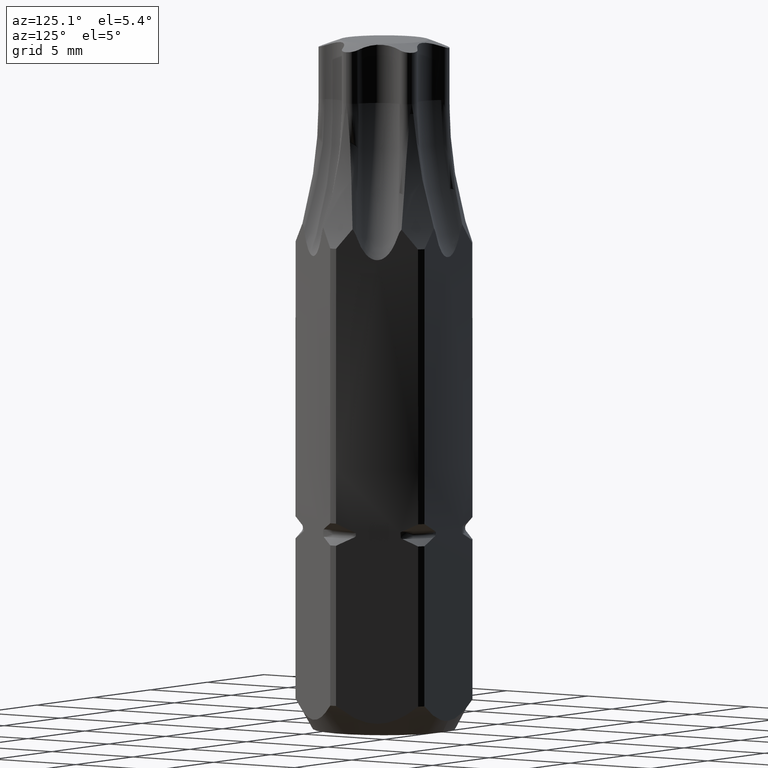
[diagram: clean part render]
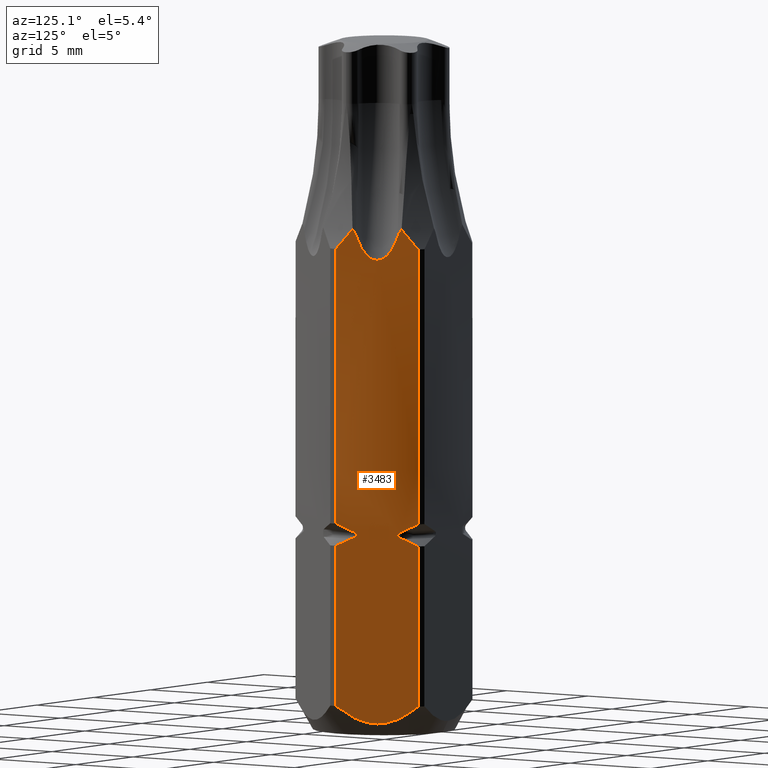
[diagram: same view with one face highlighted and labeled with its STEP entity id]
A machine part, auxiliary view. The second image highlights one B-rep face of the part: STEP entity #3483.
In plain terms, the highlighted planar face has unit normal (-0.866, -0.5, 0).
Its self-contained STEP definition (entity closure, byte-faithful):
#148=DIRECTION('',(0.E0,0.E0,-1.E0));
#149=VECTOR('',#148,8.137942564534E0);
#150=CARTESIAN_POINT('',(2.391056939270E0,3.788567897395E0,9.637942564534E0));
#151=LINE('',#150,#149);
#177=DIRECTION('',(0.E0,0.E0,-1.E0));
#178=VECTOR('',#177,8.137942564534E0);
#179=CARTESIAN_POINT('',(4.476524512741E0,1.764321026052E-1,9.637942564534E0));
#180=LINE('',#179,#178);
#280=DIRECTION('',(0.E0,0.E0,-1.E0));
#281=VECTOR('',#280,2.737942564534E0);
#282=CARTESIAN_POINT('',(2.391056939270E0,3.788567897395E0,1.35E1));
#283=LINE('',#282,#281);
#311=DIRECTION('',(0.E0,0.E0,-1.E0));
#312=VECTOR('',#311,2.737942564534E0);
#313=CARTESIAN_POINT('',(4.476524512741E0,1.764321026052E-1,1.35E1));
#314=LINE('',#313,#312);
#384=CARTESIAN_POINT('',(2.391056939270E0,3.788567897395E0,1.35E1));
#385=CARTESIAN_POINT('',(2.391679546177E0,3.787489510599E0,1.35E1));
#386=CARTESIAN_POINT('',(2.394167015446E0,3.786259436940E0,1.35E1));
#387=CARTESIAN_POINT('',(2.394789622352E0,3.785181050144E0,1.35E1));
#392=CARTESIAN_POINT('',(4.475457758524E0,1.813581246046E-1,1.35E1));
#393=CARTESIAN_POINT('',(4.476080365431E0,1.802797378087E-1,1.35E1));
#394=CARTESIAN_POINT('',(4.475901905834E0,1.775104894012E-1,1.35E1));
#395=CARTESIAN_POINT('',(4.476524512741E0,1.764321026052E-1,1.35E1));
#400=DIRECTION('',(1.348640941135E-4,-1.421864597069E-4,-9.999999807973E-1));
#401=VECTOR('',#400,1.122604300291E1);
#402=CARTESIAN_POINT('',(4.473943768404E0,1.829543159157E-1,2.472604278734E1));
#403=LINE('',#402,#401);
#407=DIRECTION('',(-5.570503912357E-5,1.878889614141E-4,-9.999999807973E-1));
#408=VECTOR('',#407,1.122604300291E1);
#409=CARTESIAN_POINT('',(2.395414969517E0,3.783071800583E0,2.472604278734E1));
#410=LINE('',#409,#408);
#414=CARTESIAN_POINT('',(2.787796949303E0,3.101394042622E0,1.039283628290E1));
#415=CARTESIAN_POINT('',(2.745829726325E0,3.174083405073E0,1.042382685063E1));
#416=CARTESIAN_POINT('',(2.660467473589E0,3.321935163859E0,1.049235160848E1));
#417=CARTESIAN_POINT('',(2.528885179923E0,3.549842381866E0,1.061455892556E1));
#418=CARTESIAN_POINT('',(2.437519524762E0,3.708092338670E0,1.071050546545E1));
#419=CARTESIAN_POINT('',(2.391056939270E0,3.788567897395E0,1.076205743547E1));
#460=CARTESIAN_POINT('',(4.476524512741E0,1.764321026052E-1,1.076205743547E1));
#461=CARTESIAN_POINT('',(4.429967282167E0,2.570715914197E-1,1.071040045320E1));
#462=CARTESIAN_POINT('',(4.338470528438E0,4.155486176057E-1,1.061432903884E1));
#463=CARTESIAN_POINT('',(4.206821574707E0,6.435712942310E-1,1.049210095035E1));
#464=CARTESIAN_POINT('',(4.121623660106E0,7.911384110189E-1,1.042373228099E1));
#465=CARTESIAN_POINT('',(4.079784502709E0,8.636059573755E-1,1.039283628291E1));
#612=CARTESIAN_POINT('',(2.787796949303E0,3.101394042622E0,1.039283628290E1));
#613=CARTESIAN_POINT('',(2.798413075107E0,3.083006373349E0,1.038499683721E1));
#614=CARTESIAN_POINT('',(2.818689980784E0,3.047885742496E0,1.036877120096E1));
#615=CARTESIAN_POINT('',(2.846708363155E0,2.999356480684E0,1.034197415143E1));
#616=CARTESIAN_POINT('',(2.870647917507E0,2.957891956236E0,1.031368130027E1));
#617=CARTESIAN_POINT('',(2.889861074568E0,2.924613792032E0,1.028420299267E1));
#618=CARTESIAN_POINT('',(2.904249082639E0,2.899693031034E0,1.025255732309E1));
#619=CARTESIAN_POINT('',(2.912690776930E0,2.885071587620E0,1.021685114192E1));
#620=CARTESIAN_POINT('',(2.912110933542E0,2.886075905828E0,1.017849283524E1));
#621=CARTESIAN_POINT('',(2.902601611333E0,2.902546535040E0,1.014308117009E1));
#622=CARTESIAN_POINT('',(2.888515931838E0,2.926943647584E0,1.011376153391E1));
#623=CARTESIAN_POINT('',(2.871812678749E0,2.955874530586E0,1.008825942766E1));
#624=CARTESIAN_POINT('',(2.852808385023E0,2.988790932882E0,1.006502641176E1));
#625=CARTESIAN_POINT('',(2.832175147689E0,3.024528748269E0,1.004384396509E1));
#626=CARTESIAN_POINT('',(2.810462886633E0,3.062135487565E0,1.002456072611E1));
#627=CARTESIAN_POINT('',(2.795444880065E0,3.088147437969E0,1.001281130822E1));
#628=CARTESIAN_POINT('',(2.787796949301E0,3.101394042625E0,1.000716371709E1));
#691=CARTESIAN_POINT('',(4.079784502709E0,8.636059573754E-1,1.000716371709E1));
#692=CARTESIAN_POINT('',(4.069142609171E0,8.820382576732E-1,1.001502219090E1));
#693=CARTESIAN_POINT('',(4.048841863653E0,9.172001803408E-1,1.003127179005E1));
#694=CARTESIAN_POINT('',(4.020870476114E0,9.656480447169E-1,1.005803479877E1));
#695=CARTESIAN_POINT('',(3.997040308889E0,1.006923105104E0,1.008619036163E1));
#696=CARTESIAN_POINT('',(3.977910041227E0,1.040057700657E0,1.011547953623E1));
#697=CARTESIAN_POINT('',(3.963537228603E0,1.064952142369E0,1.014689618937E1));
#698=CARTESIAN_POINT('',(3.954971366113E0,1.079788651412E0,1.018245959914E1));
#699=CARTESIAN_POINT('',(3.955366539260E0,1.079104191445E0,1.022094396417E1));
#700=CARTESIAN_POINT('',(3.964885397371E0,1.062617045566E0,1.025669895299E1));
#701=CARTESIAN_POINT('',(3.978941027219E0,1.038271980537E0,1.028602034403E1));
#702=CARTESIAN_POINT('',(3.995714728623E0,1.009219077473E0,1.031167909207E1));
#703=CARTESIAN_POINT('',(4.014788241818E0,9.761827835417E-1,1.033499309244E1));
#704=CARTESIAN_POINT('',(4.035462201649E0,9.403744347210E-1,1.035620958508E1));
#705=CARTESIAN_POINT('',(4.057153179140E0,9.028045596394E-1,1.037546676863E1));
#706=CARTESIAN_POINT('',(4.072151156105E0,8.768273015257E-1,1.038719946140E1));
#707=CARTESIAN_POINT('',(4.079784502709E0,8.636059573755E-1,1.039283628291E1));
#910=CARTESIAN_POINT('',(2.787796949301E0,3.101394042625E0,1.000716371709E1));
#911=CARTESIAN_POINT('',(2.745829726325E0,3.174083405072E0,9.976173149373E0));
#912=CARTESIAN_POINT('',(2.660467473589E0,3.321935163859E0,9.907648391524E0));
#913=CARTESIAN_POINT('',(2.528885179923E0,3.549842381866E0,9.785441074443E0));
#914=CARTESIAN_POINT('',(2.437519524762E0,3.708092338670E0,9.689494534553E0));
#915=CARTESIAN_POINT('',(2.391056939270E0,3.788567897395E0,9.637942564534E0));
#964=CARTESIAN_POINT('',(4.476524512741E0,1.764321026052E-1,9.637942564534E0));
#965=CARTESIAN_POINT('',(4.429967282167E0,2.570715914197E-1,9.689599546798E0));
#966=CARTESIAN_POINT('',(4.338470528438E0,4.155486176057E-1,9.785670961164E0));
#967=CARTESIAN_POINT('',(4.206821574707E0,6.435712942309E-1,9.907899049650E0));
#968=CARTESIAN_POINT('',(4.121623660106E0,7.911384110189E-1,9.976267719009E0));
#969=CARTESIAN_POINT('',(4.079784502709E0,8.636059573754E-1,1.000716371709E1));
#1184=CARTESIAN_POINT('',(4.476524512741E0,1.764321026052E-1,1.5E0));
#1185=CARTESIAN_POINT('',(4.389606398935E0,3.269786918159E-1,1.359839272279E0));
#1186=CARTESIAN_POINT('',(4.220127270910E0,6.205251523771E-1,1.114008811282E0));
#1187=CARTESIAN_POINT('',(3.978376759878E0,1.039249320240E0,8.480465112374E-1));
#1188=CARTESIAN_POINT('',(3.752568113315E0,1.430361368876E0,6.828051733702E-1));
#1189=CARTESIAN_POINT('',(3.539116464749E0,1.800070469152E0,6.048024703158E-1));
#1190=CARTESIAN_POINT('',(3.329131519671E0,2.163775062852E0,6.046982378061E-1));
#1191=CARTESIAN_POINT('',(3.116001997292E0,2.532926224204E0,6.823220589272E-1));
#1192=CARTESIAN_POINT('',(2.890556953489E0,2.923408494385E0,8.467824394410E-1));
#1193=CARTESIAN_POINT('',(2.648171134987E0,3.343233047065E0,1.112996898720E0));
#1194=CARTESIAN_POINT('',(2.478246563747E0,3.637551037907E0,1.359401444862E0));
#1195=CARTESIAN_POINT('',(2.391056939270E0,3.788567897395E0,1.5E0));
#1402=CARTESIAN_POINT('',(2.811395579818E0,3.060520015580E0,2.572307797896E1));
#1403=CARTESIAN_POINT('',(2.776838652906E0,3.120374368745E0,2.565259308849E1));
#1404=CARTESIAN_POINT('',(2.708192065020E0,3.239200452694E0,2.550476471620E1));
#1405=CARTESIAN_POINT('',(2.606065001065E0,3.416419539453E0,2.526568799449E1));
#1406=CARTESIAN_POINT('',(2.502105196127E0,3.595273851962E0,2.500805875931E1));
#1407=CARTESIAN_POINT('',(2.431668510692E0,3.720278825314E0,2.482217909396E1));
#1408=CARTESIAN_POINT('',(2.395414969517E0,3.783071800583E0,2.472604278734E1));
#1425=CARTESIAN_POINT('',(2.811395579818E0,3.060520015580E0,2.572307797896E1));
#1504=CARTESIAN_POINT('',(4.056185872193E0,9.044799844195E-1,2.572307797896E1));
#1521=CARTESIAN_POINT('',(4.473943768404E0,1.829543159157E-1,2.472604278734E1));
#1522=CARTESIAN_POINT('',(4.443587033737E0,2.355337227112E-1,2.480654207810E1));
#1523=CARTESIAN_POINT('',(4.382654127403E0,3.380679075620E-1,2.496129216622E1));
#1524=CARTESIAN_POINT('',(4.299460312281E0,4.833715957155E-1,2.517262055788E1));
#1525=CARTESIAN_POINT('',(4.218079842776E0,6.240026668533E-1,2.536834685675E1));
#1526=CARTESIAN_POINT('',(4.138011120877E0,7.627741349494E-1,2.555123253649E1));
#1527=CARTESIAN_POINT('',(4.083618372524E0,8.569655000668E-1,2.566712460133E1));
#1528=CARTESIAN_POINT('',(4.056185872193E0,9.044799844195E-1,2.572307797896E1));
#2586=CARTESIAN_POINT('',(2.912371708589E0,2.885624230197E0,2.534642132236E1));
#2587=CARTESIAN_POINT('',(2.907417867906E0,2.894204533954E0,2.537574767850E1));
#2588=CARTESIAN_POINT('',(2.896947040980E0,2.912340538186E0,2.543337085943E1));
#2589=CARTESIAN_POINT('',(2.878644427714E0,2.944041594275E0,2.551856447477E1));
#2590=CARTESIAN_POINT('',(2.858708029197E0,2.978572449426E0,2.559579313496E1));
#2591=CARTESIAN_POINT('',(2.836210784548E0,3.017538820187E0,2.566633134405E1));
#2592=CARTESIAN_POINT('',(2.820000231493E0,3.045616321697E0,2.570548529137E1));
#2593=CARTESIAN_POINT('',(2.811395579818E0,3.060520015580E0,2.572307797896E1));
#2630=CARTESIAN_POINT('',(3.955209743421E0,1.079375769803E0,2.534642132236E1));
#2631=CARTESIAN_POINT('',(3.941111734907E0,1.103794236834E0,2.526296219543E1));
#2632=CARTESIAN_POINT('',(3.911985513794E0,1.154242331636E0,2.510720331854E1));
#2633=CARTESIAN_POINT('',(3.867615726746E0,1.231093057124E0,2.491025730033E1));
#2634=CARTESIAN_POINT('',(3.820889295285E0,1.312025610470E0,2.473720017239E1));
#2635=CARTESIAN_POINT('',(3.770514116475E0,1.399277979610E0,2.458298821763E1));
#2636=CARTESIAN_POINT('',(3.713032716945E0,1.498838684086E0,2.444112161958E1));
#2637=CARTESIAN_POINT('',(3.645226965152E0,1.616281691236E0,2.431408310995E1));
#2638=CARTESIAN_POINT('',(3.565701514692E0,1.754023811928E0,2.421373975983E1));
#2639=CARTESIAN_POINT('',(3.475749622161E0,1.909825060029E0,2.415766212492E1));
#2640=CARTESIAN_POINT('',(3.381952095863E0,2.072287141202E0,2.416100692953E1));
#2641=CARTESIAN_POINT('',(3.293217035280E0,2.225980774544E0,2.422236428123E1));
#2642=CARTESIAN_POINT('',(3.215134990972E0,2.361222842445E0,2.432573297375E1));
#2643=CARTESIAN_POINT('',(3.148603662397E0,2.476458483832E0,2.445433570924E1));
#2644=CARTESIAN_POINT('',(3.092605664278E0,2.573449861695E0,2.459561427998E1));
#2645=CARTESIAN_POINT('',(3.043488875264E0,2.658522635773E0,2.474828076293E1));
#2646=CARTESIAN_POINT('',(2.997967733822E0,2.737367565568E0,2.491865252886E1));
#2647=CARTESIAN_POINT('',(2.954679641990E0,2.812344739984E0,2.511195998659E1));
#2648=CARTESIAN_POINT('',(2.926183461708E0,2.861701572053E0,2.526465680537E1));
#2649=CARTESIAN_POINT('',(2.912371708589E0,2.885624230197E0,2.534642132236E1));
#2662=CARTESIAN_POINT('',(4.056185872193E0,9.044799844195E-1,2.572307797896E1));
#2663=CARTESIAN_POINT('',(4.047574300667E0,9.193956638348E-1,2.570547114335E1));
#2664=CARTESIAN_POINT('',(4.031352181660E0,9.474931981615E-1,2.566628736203E1));
#2665=CARTESIAN_POINT('',(4.008824628605E0,9.865120646232E-1,2.559562662966E1));
#2666=CARTESIAN_POINT('',(3.988904676535E0,1.021014433692E0,2.551841647165E1));
#2667=CARTESIAN_POINT('',(3.970645192438E0,1.052640787869E0,2.543341918824E1));
#2668=CARTESIAN_POINT('',(3.960168244213E0,1.070787394503E0,2.537577526597E1));
#2669=CARTESIAN_POINT('',(3.955209743421E0,1.079375769803E0,2.534642132236E1));
#2968=CARTESIAN_POINT('',(2.391056939270E0,3.788567897395E0,9.637942564534E0));
#2969=CARTESIAN_POINT('',(2.391056939270E0,3.788567897395E0,1.5E0));
#2970=VERTEX_POINT('',#2968);
#2971=VERTEX_POINT('',#2969);
#2972=CARTESIAN_POINT('',(4.476524512741E0,1.764321026052E-1,9.637942564534E0));
#2973=CARTESIAN_POINT('',(4.476524512741E0,1.764321026052E-1,1.5E0));
#2974=VERTEX_POINT('',#2972);
#2975=VERTEX_POINT('',#2973);
#3024=VERTEX_POINT('',#460);
#3025=VERTEX_POINT('',#465);
#3026=VERTEX_POINT('',#414);
#3027=VERTEX_POINT('',#419);
#3028=VERTEX_POINT('',#691);
#3029=VERTEX_POINT('',#628);
#3075=VERTEX_POINT('',#1425);
#3076=VERTEX_POINT('',#1504);
#3077=CARTESIAN_POINT('',(3.955209743421E0,1.079375769803E0,2.534642132236E1));
#3078=VERTEX_POINT('',#3077);
#3079=CARTESIAN_POINT('',(2.912371708589E0,2.885624230197E0,2.534642132236E1));
#3080=VERTEX_POINT('',#3079);
#3086=CARTESIAN_POINT('',(2.394795211918E0,3.782093019235E0,2.472604278734E1));
#3088=VERTEX_POINT('',#3086);
#3101=VERTEX_POINT('',#384);
#3102=VERTEX_POINT('',#387);
#3103=VERTEX_POINT('',#392);
#3104=VERTEX_POINT('',#395);
#3105=CARTESIAN_POINT('',(4.473943768404E0,1.829543159157E-1,2.472604278734E1));
#3106=VERTEX_POINT('',#3105);
#3444=CARTESIAN_POINT('',(-6.239322735568E-1,9.010682398282E0,1.35E1));
#3445=DIRECTION('',(-8.660254037844E-1,-5.E-1,0.E0));
#3446=DIRECTION('',(0.E0,0.E0,-1.E0));
#3447=AXIS2_PLACEMENT_3D('',#3444,#3445,#3446);
#3448=PLANE('',#3447);
#3449=ORIENTED_EDGE('',*,*,#3313,.F.);
#3450=ORIENTED_EDGE('',*,*,#3311,.T.);
#3452=ORIENTED_EDGE('',*,*,#3451,.F.);
#3454=ORIENTED_EDGE('',*,*,#3453,.T.);
#3456=ORIENTED_EDGE('',*,*,#3455,.T.);
#3457=ORIENTED_EDGE('',*,*,#3220,.T.);
#3459=ORIENTED_EDGE('',*,*,#3458,.F.);
#3460=ORIENTED_EDGE('',*,*,#3240,.F.);
#3462=ORIENTED_EDGE('',*,*,#3461,.T.);
#3464=ORIENTED_EDGE('',*,*,#3463,.T.);
#3466=ORIENTED_EDGE('',*,*,#3465,.F.);
#3467=ORIENTED_EDGE('',*,*,#3347,.F.);
#3468=ORIENTED_EDGE('',*,*,#3345,.F.);
#3469=ORIENTED_EDGE('',*,*,#3343,.F.);
#3471=ORIENTED_EDGE('',*,*,#3470,.T.);
#3473=ORIENTED_EDGE('',*,*,#3472,.T.);
#3475=ORIENTED_EDGE('',*,*,#3474,.T.);
#3477=ORIENTED_EDGE('',*,*,#3476,.T.);
#3479=ORIENTED_EDGE('',*,*,#3478,.T.);
#3480=ORIENTED_EDGE('',*,*,#3315,.T.);
#3481=EDGE_LOOP('',(#3449,#3450,#3452,#3454,#3456,#3457,#3459,#3460,#3462,#3464,
#3466,#3467,#3468,#3469,#3471,#3473,#3475,#3477,#3479,#3480));
#3482=FACE_OUTER_BOUND('',#3481,.F.);
#3483=ADVANCED_FACE('',(#3482),#3448,.F.);
#388=B_SPLINE_CURVE_WITH_KNOTS('',3,(#384,#385,#386,#387),.UNSPECIFIED.,.F.,.F.,
(4,4),(0.E0,1.E0),.UNSPECIFIED.);
#396=B_SPLINE_CURVE_WITH_KNOTS('',3,(#392,#393,#394,#395),.UNSPECIFIED.,.F.,.F.,
(4,4),(0.E0,1.E0),.UNSPECIFIED.);
#420=B_SPLINE_CURVE_WITH_KNOTS('',3,(#414,#415,#416,#417,#418,#419),
.UNSPECIFIED.,.F.,.F.,(4,1,1,4),(0.E0,3.333333333333E-1,6.666666666667E-1,1.E0),
.UNSPECIFIED.);
#466=B_SPLINE_CURVE_WITH_KNOTS('',3,(#460,#461,#462,#463,#464,#465),
.UNSPECIFIED.,.F.,.F.,(4,1,1,4),(0.E0,3.333333333333E-1,6.666666666667E-1,1.E0),
.UNSPECIFIED.);
#629=B_SPLINE_CURVE_WITH_KNOTS('',3,(#612,#613,#614,#615,#616,#617,#618,#619,
#620,#621,#622,#623,#624,#625,#626,#627,#628),.UNSPECIFIED.,.F.,.F.,(4,1,1,1,1,
1,1,1,1,1,1,1,1,1,4),(0.E0,7.142857142857E-2,1.428571428571E-1,
2.142857142857E-1,2.857142857143E-1,3.571428571429E-1,4.285714285714E-1,5.E-1,
5.714285714286E-1,6.428571428571E-1,7.142857142857E-1,7.857142857143E-1,
8.571428571429E-1,9.285714285714E-1,1.E0),.UNSPECIFIED.);
#708=B_SPLINE_CURVE_WITH_KNOTS('',3,(#691,#692,#693,#694,#695,#696,#697,#698,
#699,#700,#701,#702,#703,#704,#705,#706,#707),.UNSPECIFIED.,.F.,.F.,(4,1,1,1,1,
1,1,1,1,1,1,1,1,1,4),(0.E0,7.142857142857E-2,1.428571428571E-1,
2.142857142857E-1,2.857142857143E-1,3.571428571429E-1,4.285714285714E-1,5.E-1,
5.714285714286E-1,6.428571428571E-1,7.142857142857E-1,7.857142857143E-1,
8.571428571429E-1,9.285714285714E-1,1.E0),.UNSPECIFIED.);
#916=B_SPLINE_CURVE_WITH_KNOTS('',3,(#910,#911,#912,#913,#914,#915),
.UNSPECIFIED.,.F.,.F.,(4,1,1,4),(0.E0,3.333333333333E-1,6.666666666667E-1,1.E0),
.UNSPECIFIED.);
#970=B_SPLINE_CURVE_WITH_KNOTS('',3,(#964,#965,#966,#967,#968,#969),
.UNSPECIFIED.,.F.,.F.,(4,1,1,4),(0.E0,3.333333333333E-1,6.666666666667E-1,1.E0),
.UNSPECIFIED.);
#1196=B_SPLINE_CURVE_WITH_KNOTS('',3,(#1184,#1185,#1186,#1187,#1188,#1189,#1190,
#1191,#1192,#1193,#1194,#1195),.UNSPECIFIED.,.F.,.F.,(4,1,1,1,1,1,1,1,1,4),
(0.E0,1.111111111111E-1,2.222222222222E-1,3.333333333333E-1,4.444444444444E-1,
5.555555555556E-1,6.666666666667E-1,7.777777777778E-1,8.888888888889E-1,1.E0),
.UNSPECIFIED.);
#1409=B_SPLINE_CURVE_WITH_KNOTS('',3,(#1402,#1403,#1404,#1405,#1406,#1407,
#1408),.UNSPECIFIED.,.F.,.F.,(4,1,1,1,4),(0.E0,2.5E-1,5.E-1,7.5E-1,1.E0),
.UNSPECIFIED.);
#1529=B_SPLINE_CURVE_WITH_KNOTS('',3,(#1521,#1522,#1523,#1524,#1525,#1526,#1527,
#1528),.UNSPECIFIED.,.F.,.F.,(4,1,1,1,1,4),(0.E0,2.E-1,4.E-1,6.E-1,8.E-1,1.E0),
.UNSPECIFIED.);
#2594=B_SPLINE_CURVE_WITH_KNOTS('',3,(#2586,#2587,#2588,#2589,#2590,#2591,#2592,
#2593),.UNSPECIFIED.,.F.,.F.,(4,1,1,1,1,4),(0.E0,2.E-1,4.E-1,6.E-1,8.E-1,1.E0),
.UNSPECIFIED.);
#2650=B_SPLINE_CURVE_WITH_KNOTS('',3,(#2630,#2631,#2632,#2633,#2634,#2635,#2636,
#2637,#2638,#2639,#2640,#2641,#2642,#2643,#2644,#2645,#2646,#2647,#2648,#2649),
.UNSPECIFIED.,.F.,.F.,(4,1,1,1,1,1,1,1,1,1,1,1,1,1,1,1,1,4),(0.E0,
5.882352941176E-2,1.176470588235E-1,1.764705882353E-1,2.352941176471E-1,
2.941176470588E-1,3.529411764706E-1,4.117647058824E-1,4.705882352941E-1,
5.294117647059E-1,5.882352941176E-1,6.470588235294E-1,7.058823529412E-1,
7.647058823529E-1,8.235294117647E-1,8.823529411765E-1,9.411764705882E-1,1.E0),
.UNSPECIFIED.);
#2670=B_SPLINE_CURVE_WITH_KNOTS('',3,(#2662,#2663,#2664,#2665,#2666,#2667,#2668,
#2669),.UNSPECIFIED.,.F.,.F.,(4,1,1,1,1,4),(0.E0,2.E-1,4.E-1,6.E-1,8.E-1,1.E0),
.UNSPECIFIED.);
#3220=EDGE_CURVE('',#2970,#2971,#151,.T.);
#3240=EDGE_CURVE('',#2974,#2975,#180,.T.);
#3311=EDGE_CURVE('',#3101,#3027,#283,.T.);
#3313=EDGE_CURVE('',#3101,#3102,#388,.T.);
#3315=EDGE_CURVE('',#3088,#3102,#410,.T.);
#3343=EDGE_CURVE('',#3106,#3103,#403,.T.);
#3345=EDGE_CURVE('',#3103,#3104,#396,.T.);
#3347=EDGE_CURVE('',#3104,#3024,#314,.T.);
#3451=EDGE_CURVE('',#3026,#3027,#420,.T.);
#3453=EDGE_CURVE('',#3026,#3029,#629,.T.);
#3455=EDGE_CURVE('',#3029,#2970,#916,.T.);
#3458=EDGE_CURVE('',#2975,#2971,#1196,.T.);
#3461=EDGE_CURVE('',#2974,#3028,#970,.T.);
#3463=EDGE_CURVE('',#3028,#3025,#708,.T.);
#3465=EDGE_CURVE('',#3024,#3025,#466,.T.);
#3470=EDGE_CURVE('',#3106,#3076,#1529,.T.);
#3472=EDGE_CURVE('',#3076,#3078,#2670,.T.);
#3474=EDGE_CURVE('',#3078,#3080,#2650,.T.);
#3476=EDGE_CURVE('',#3080,#3075,#2594,.T.);
#3478=EDGE_CURVE('',#3075,#3088,#1409,.T.);